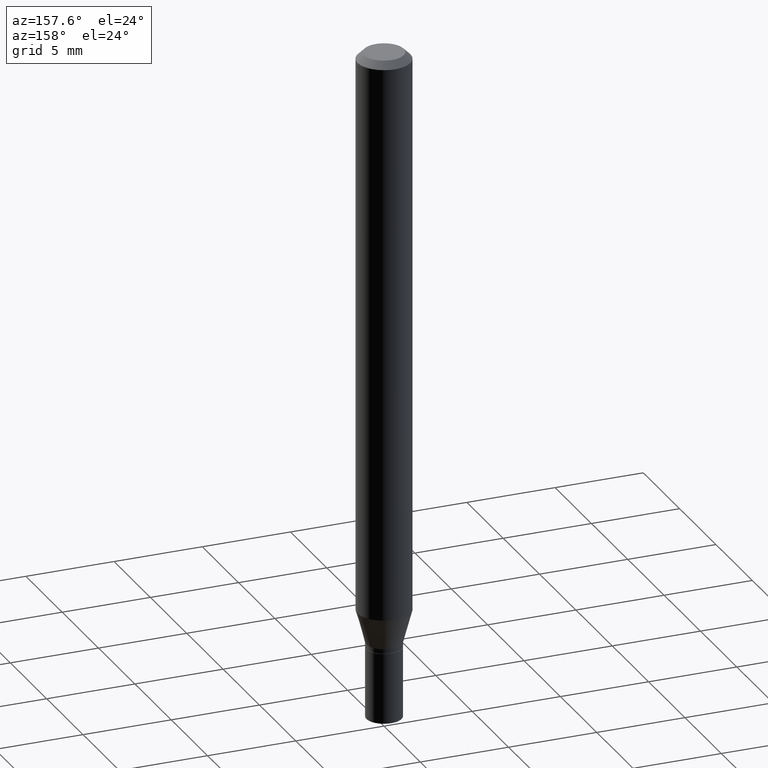
[diagram: clean part render]
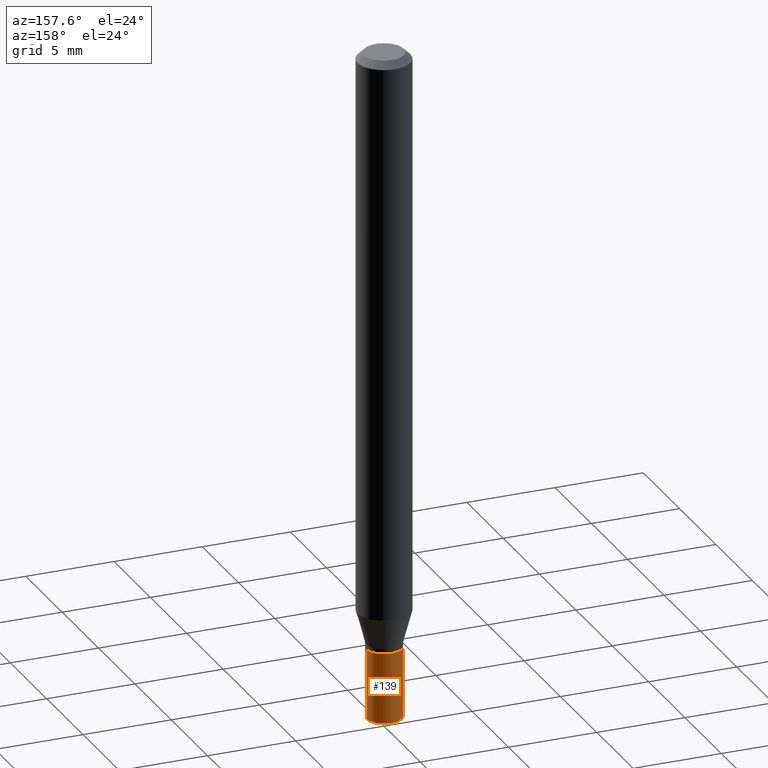
[diagram: same view with one face highlighted and labeled with its STEP entity id]
A machine part, auxiliary view. The second image highlights one B-rep face of the part: STEP entity #139.
In plain terms, the highlighted cylindrical surface (edge-blend (fillet) strip) has radius 0.9995 mm, axis along (-0, 0, 1).
Its self-contained STEP definition (entity closure, byte-faithful):
#3 = CIRCLE ( 'NONE', #431, 0.03935000000000000303 ) ;
#17 = LINE ( 'NONE', #86, #462 ) ;
#20 = DIRECTION ( 'NONE',  ( -2.445468806185136597E-29, 3.491481338843145583E-15, 1.000000000000000000 ) ) ;
#28 = VECTOR ( 'NONE', #185, 39.37007874015748143 ) ;
#30 = VERTEX_POINT ( 'NONE', #276 ) ;
#48 = ORIENTED_EDGE ( 'NONE', *, *, #350, .F. ) ;
#57 = ORIENTED_EDGE ( 'NONE', *, *, #290, .T. ) ;
#72 = ORIENTED_EDGE ( 'NONE', *, *, #221, .T. ) ;
#77 = CYLINDRICAL_SURFACE ( 'NONE', #136, 0.03935000000000000303 ) ;
#80 = CARTESIAN_POINT ( 'NONE',  ( 3.668203209277704895E-29, -5.237222008264718177E-15, -1.500000000000000222 ) ) ;
#86 = CARTESIAN_POINT ( 'NONE',  ( -0.03935000000000000303, 2.795985665215994447E-16, -1.935600958015305291E-30 ) ) ;
#88 = DIRECTION ( 'NONE',  ( -2.445468806185136877E-29, 3.491481338843145188E-15, 1.000000000000000000 ) ) ;
#136 = AXIS2_PLACEMENT_3D ( 'NONE', #180, #250, #439 ) ;
#139 = ADVANCED_FACE ( 'NONE', ( #217 ), #77, .T. ) ;
#148 = DIRECTION ( 'NONE',  ( 1.000000000000000000, -6.982962677686269077E-15, 0.000000000000000000 ) ) ;
#155 = VERTEX_POINT ( 'NONE', #368 ) ;
#161 = DIRECTION ( 'NONE',  ( 1.000000000000000000, -6.982962677686269077E-15, 0.000000000000000000 ) ) ;
#180 = CARTESIAN_POINT ( 'NONE',  ( 0.000000000000000000, 0.000000000000000000, 0.000000000000000000 ) ) ;
#185 = DIRECTION ( 'NONE',  ( -2.445468806185136877E-29, 3.491481338843145188E-15, 1.000000000000000000 ) ) ;
#217 = FACE_OUTER_BOUND ( 'NONE', #426, .T. ) ;
#221 = EDGE_CURVE ( 'NONE', #155, #268, #366, .T. ) ;
#226 = AXIS2_PLACEMENT_3D ( 'NONE', #80, #331, #148 ) ;
#229 = LINE ( 'NONE', #441, #28 ) ;
#231 = CARTESIAN_POINT ( 'NONE',  ( -0.03935000000000000303, -4.682669286309222109E-15, -1.500000000000000222 ) ) ;
#250 = DIRECTION ( 'NONE',  ( -2.445468806185136597E-29, 3.491481338843145583E-15, 1.000000000000000000 ) ) ;
#265 = CARTESIAN_POINT ( 'NONE',  ( 3.283041872303546419E-29, -4.687313697396923253E-15, -1.342500000000000249 ) ) ;
#268 = VERTEX_POINT ( 'NONE', #231 ) ;
#276 = CARTESIAN_POINT ( 'NONE',  ( 0.03935000000000000303, -4.962093278763878170E-15, -1.342500000000000249 ) ) ;
#290 = EDGE_CURVE ( 'NONE', #268, #466, #17, .T. ) ;
#316 = CARTESIAN_POINT ( 'NONE',  ( -0.03935000000000000303, -4.682669286309222109E-15, -1.342500000000000249 ) ) ;
#331 = DIRECTION ( 'NONE',  ( -2.445468806185136597E-29, 3.491481338843145583E-15, 1.000000000000000000 ) ) ;
#341 = EDGE_CURVE ( 'NONE', #30, #466, #3, .T. ) ;
#350 = EDGE_CURVE ( 'NONE', #155, #30, #229, .T. ) ;
#366 = CIRCLE ( 'NONE', #226, 0.03935000000000000303 ) ;
#368 = CARTESIAN_POINT ( 'NONE',  ( 0.03935000000000000303, -5.512001589631673094E-15, -1.500000000000000222 ) ) ;
#426 = EDGE_LOOP ( 'NONE', ( #72, #57, #456, #48 ) ) ;
#431 = AXIS2_PLACEMENT_3D ( 'NONE', #265, #20, #161 ) ;
#439 = DIRECTION ( 'NONE',  ( 1.000000000000000000, -6.982962677686266711E-15, 4.876176775795936353E-29 ) ) ;
#441 = CARTESIAN_POINT ( 'NONE',  ( 0.03935000000000000303, -2.747795813669546211E-16, 1.918775561275701074E-30 ) ) ;
#456 = ORIENTED_EDGE ( 'NONE', *, *, #341, .F. ) ;
#462 = VECTOR ( 'NONE', #88, 39.37007874015748143 ) ;
#466 = VERTEX_POINT ( 'NONE', #316 ) ;